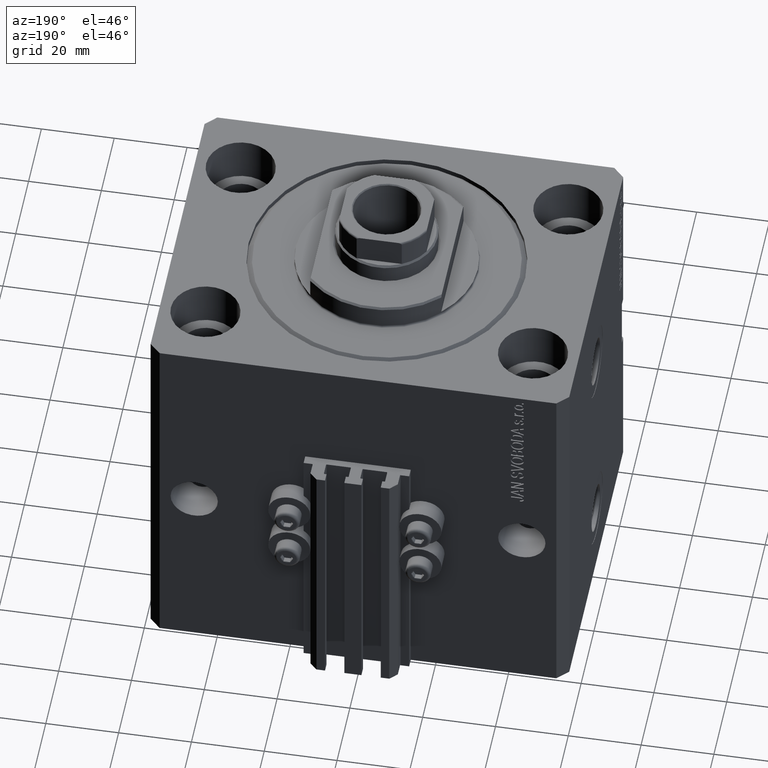
[diagram: clean part render]
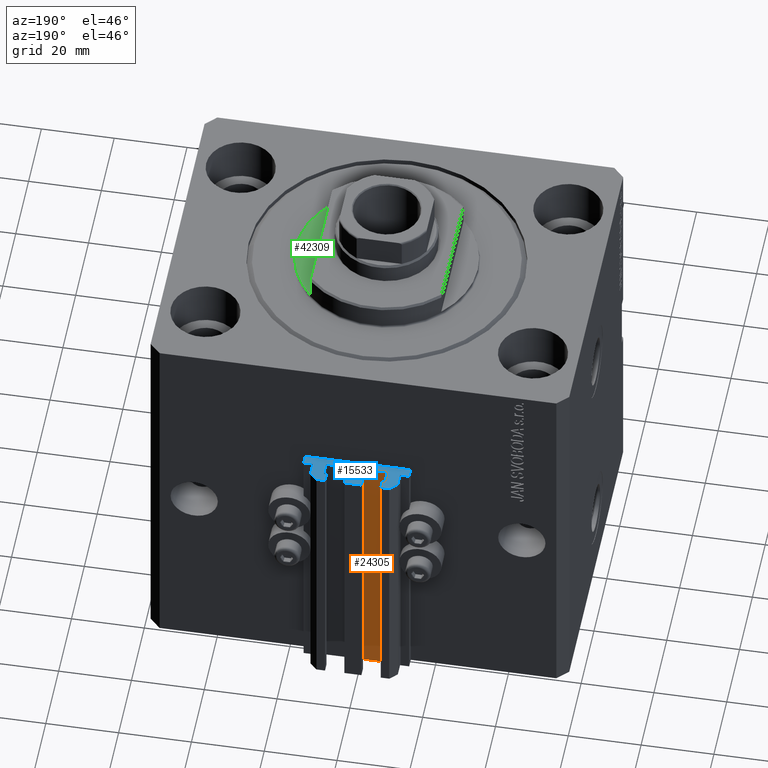
[diagram: same view with three faces highlighted in distinct colors, each labeled with its STEP entity id]
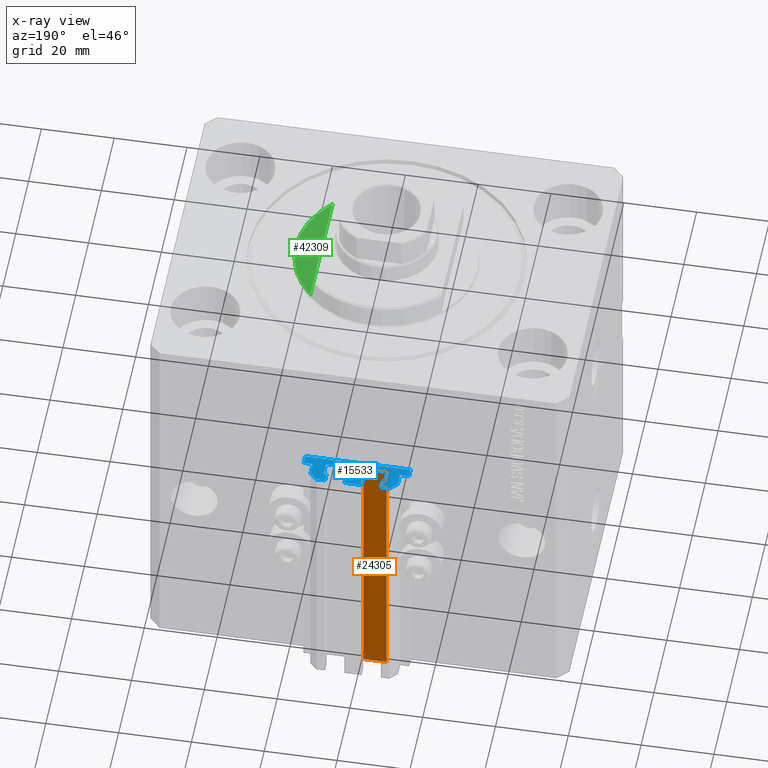
[diagram: x-ray of the same camera — body ghosted, the three highlighted faces saturated]
A machine part, auxiliary view with three faces highlighted in distinct colors.
The next image is the same camera in x-ray (body ghosted, the three faces saturated) — at least one of them is partly hidden behind the body in this view.
Their STEP definitions:

[orange] entity #24305 — the highlighted planar face has unit normal (0, 1, 0).
#1451 = VECTOR ( 'NONE', #16655, 1000.000000000000000 ) ;
#1554 = VERTEX_POINT ( 'NONE', #21747 ) ;
#5683 = EDGE_CURVE ( 'NONE', #40472, #1554, #24205, .T. ) ;
#5694 = LINE ( 'NONE', #35562, #1451 ) ;
#7207 = ORIENTED_EDGE ( 'NONE', *, *, #22869, .T. ) ;
#10495 = EDGE_LOOP ( 'NONE', ( #19639, #10634, #46654, #7207 ) ) ;
#10634 = ORIENTED_EDGE ( 'NONE', *, *, #19656, .F. ) ;
#11797 = VECTOR ( 'NONE', #34671, 1000.000000000000000 ) ;
#13844 = PLANE ( 'NONE',  #38545 ) ;
#16655 = DIRECTION ( 'NONE',  ( -1.000000000000000000, 0.000000000000000000, 0.000000000000000000 ) ) ;
#16698 = CARTESIAN_POINT ( 'NONE',  ( -8.199999999999997513, 46.99999999999999289, -107.0000000000000000 ) ) ;
#16823 = CARTESIAN_POINT ( 'NONE',  ( -1.800000000000000933, 46.99999999999999289, -107.0000000000000000 ) ) ;
#17463 = CARTESIAN_POINT ( 'NONE',  ( -8.199999999999997513, 46.99999999999999289, -33.00000000000000000 ) ) ;
#18956 = CARTESIAN_POINT ( 'NONE',  ( -1.800000000000000933, 46.99999999999999289, -33.00000000000000000 ) ) ;
#19639 = ORIENTED_EDGE ( 'NONE', *, *, #47386, .F. ) ;
#19656 = EDGE_CURVE ( 'NONE', #40472, #49099, #37380, .T. ) ;
#19754 = CARTESIAN_POINT ( 'NONE',  ( -1.800000000000000933, 46.99999999999999289, -107.0000000000000000 ) ) ;
#21747 = CARTESIAN_POINT ( 'NONE',  ( -8.199999999999997513, 46.99999999999999289, -107.0000000000000000 ) ) ;
#22869 = EDGE_CURVE ( 'NONE', #1554, #29014, #23915, .T. ) ;
#23915 = LINE ( 'NONE', #16698, #36089 ) ;
#24205 = LINE ( 'NONE', #19754, #11797 ) ;
#24305 = ADVANCED_FACE ( 'NONE', ( #47153 ), #13844, .T. ) ;
#26995 = CARTESIAN_POINT ( 'NONE',  ( -1.800000000000000933, 46.99999999999999289, -107.0000000000000000 ) ) ;
#28020 = DIRECTION ( 'NONE',  ( 0.000000000000000000, 0.000000000000000000, 1.000000000000000000 ) ) ;
#29014 = VERTEX_POINT ( 'NONE', #17463 ) ;
#32243 = DIRECTION ( 'NONE',  ( 0.000000000000000000, 1.000000000000000000, -0.000000000000000000 ) ) ;
#32785 = VECTOR ( 'NONE', #48811, 1000.000000000000000 ) ;
#33650 = CARTESIAN_POINT ( 'NONE',  ( -1.800000000000000933, 46.99999999999999289, -107.0000000000000000 ) ) ;
#34671 = DIRECTION ( 'NONE',  ( -1.000000000000000000, 0.000000000000000000, 0.000000000000000000 ) ) ;
#35562 = CARTESIAN_POINT ( 'NONE',  ( -1.800000000000000933, 46.99999999999999289, -33.00000000000000000 ) ) ;
#36089 = VECTOR ( 'NONE', #46054, 1000.000000000000000 ) ;
#37380 = LINE ( 'NONE', #33650, #32785 ) ;
#38545 = AXIS2_PLACEMENT_3D ( 'NONE', #16823, #32243, #28020 ) ;
#40472 = VERTEX_POINT ( 'NONE', #26995 ) ;
#46054 = DIRECTION ( 'NONE',  ( 0.000000000000000000, 0.000000000000000000, 1.000000000000000000 ) ) ;
#46654 = ORIENTED_EDGE ( 'NONE', *, *, #5683, .T. ) ;
#47153 = FACE_OUTER_BOUND ( 'NONE', #10495, .T. ) ;
#47386 = EDGE_CURVE ( 'NONE', #49099, #29014, #5694, .T. ) ;
#48811 = DIRECTION ( 'NONE',  ( 0.000000000000000000, 0.000000000000000000, 1.000000000000000000 ) ) ;
#49099 = VERTEX_POINT ( 'NONE', #18956 ) ;

[blue] entity #15533 — the highlighted planar face has unit normal (0, 0, 1).
#77 = CARTESIAN_POINT ( 'NONE',  ( 1.599999999999997868, 47.19999999999998863, -33.00000000000000000 ) ) ;
#355 = DIRECTION ( 'NONE',  ( 1.000000000000000000, 0.000000000000000000, 0.000000000000000000 ) ) ;
#480 = DIRECTION ( 'NONE',  ( 0.000000000000000000, 0.000000000000000000, 1.000000000000000000 ) ) ;
#496 = DIRECTION ( 'NONE',  ( 0.000000000000000000, 0.000000000000000000, 1.000000000000000000 ) ) ;
#684 = LINE ( 'NONE', #4169, #18950 ) ;
#1365 = VERTEX_POINT ( 'NONE', #4185 ) ;
#1404 = VERTEX_POINT ( 'NONE', #18894 ) ;
#1417 = VERTEX_POINT ( 'NONE', #6937 ) ;
#1451 = VECTOR ( 'NONE', #16655, 1000.000000000000000 ) ;
#1474 = CARTESIAN_POINT ( 'NONE',  ( 12.20000000000000107, 47.70000000000000284, -33.00000000000000000 ) ) ;
#1652 = CARTESIAN_POINT ( 'NONE',  ( -12.00000000000000000, 47.69999999999999574, -33.00000000000000000 ) ) ;
#1742 = VERTEX_POINT ( 'NONE', #27689 ) ;
#1806 = ORIENTED_EDGE ( 'NONE', *, *, #41584, .T. ) ;
#1895 = VERTEX_POINT ( 'NONE', #19687 ) ;
#2104 = EDGE_CURVE ( 'NONE', #17971, #46239, #38821, .T. ) ;
#2197 = CARTESIAN_POINT ( 'NONE',  ( -14.50000000000000000, 45.00000000000000000, -33.00000000000000000 ) ) ;
#2419 = CARTESIAN_POINT ( 'NONE',  ( -14.50000000000000000, 45.00000000000000000, -33.00000000000000000 ) ) ;
#2580 = CARTESIAN_POINT ( 'NONE',  ( -8.399999999999996803, 47.19999999999998863, -33.00000000000000000 ) ) ;
#2883 = DIRECTION ( 'NONE',  ( -1.084202172485506406E-15, 1.000000000000000000, 0.000000000000000000 ) ) ;
#3604 = ORIENTED_EDGE ( 'NONE', *, *, #34589, .T. ) ;
#3889 = EDGE_CURVE ( 'NONE', #18340, #24215, #18261, .T. ) ;
#3949 = DIRECTION ( 'NONE',  ( 1.000000000000000000, 0.000000000000000000, 0.000000000000000000 ) ) ;
#4169 = CARTESIAN_POINT ( 'NONE',  ( 1.800000000000000933, 50.60000000000000853, -33.00000000000000000 ) ) ;
#4185 = CARTESIAN_POINT ( 'NONE',  ( -14.50000000000000000, 47.49999999999998579, -33.00000000000000000 ) ) ;
#4259 = CARTESIAN_POINT ( 'NONE',  ( -7.650000000000002132, 52.99999999999999289, -33.00000000000000000 ) ) ;
#4461 = CARTESIAN_POINT ( 'NONE',  ( -10.00000000000000000, 52.99999999999999289, -33.00000000000000000 ) ) ;
#4479 = AXIS2_PLACEMENT_3D ( 'NONE', #16446, #43044, #10377 ) ;
#4816 = DIRECTION ( 'NONE',  ( -1.000000000000000000, 0.000000000000000000, 0.000000000000000000 ) ) ;
#4906 = DIRECTION ( 'NONE',  ( 0.000000000000000000, 1.000000000000000000, 0.000000000000000000 ) ) ;
#5077 = VECTOR ( 'NONE', #24669, 1000.000000000000000 ) ;
#5522 = LINE ( 'NONE', #20708, #13731 ) ;
#5568 = DIRECTION ( 'NONE',  ( 0.000000000000000000, 0.000000000000000000, 1.000000000000000000 ) ) ;
#5694 = LINE ( 'NONE', #35562, #1451 ) ;
#6069 = VECTOR ( 'NONE', #31737, 1000.000000000000000 ) ;
#6131 = LINE ( 'NONE', #6373, #30522 ) ;
#6373 = CARTESIAN_POINT ( 'NONE',  ( -10.00000000000000000, 52.99999999999999289, -33.00000000000000000 ) ) ;
#6467 = CARTESIAN_POINT ( 'NONE',  ( -2.350000000000003642, 53.00000000000000000, -33.00000000000000000 ) ) ;
#6593 = CARTESIAN_POINT ( 'NONE',  ( 14.49999999999999645, 45.00000000000000000, -33.00000000000000000 ) ) ;
#6700 = DIRECTION ( 'NONE',  ( 0.000000000000000000, 0.000000000000000000, 1.000000000000000000 ) ) ;
#6848 = CIRCLE ( 'NONE', #4479, 0.2000000000000074496 ) ;
#6937 = CARTESIAN_POINT ( 'NONE',  ( 8.400000000000003908, 50.39999999999999858, -33.00000000000000000 ) ) ;
#6961 = VERTEX_POINT ( 'NONE', #77 ) ;
#7083 = ORIENTED_EDGE ( 'NONE', *, *, #44005, .F. ) ;
#7204 = EDGE_CURVE ( 'NONE', #1404, #33998, #28656, .T. ) ;
#7415 = CIRCLE ( 'NONE', #20140, 0.2000000000000033418 ) ;
#7709 = DIRECTION ( 'NONE',  ( 1.000000000000000000, 0.000000000000000000, 0.000000000000000000 ) ) ;
#7712 = CIRCLE ( 'NONE', #36283, 0.1999999999999953204 ) ;
#7759 = ORIENTED_EDGE ( 'NONE', *, *, #30291, .F. ) ;
#7789 = CARTESIAN_POINT ( 'NONE',  ( -12.00000000000000000, 50.99999999999999289, -33.00000000000000000 ) ) ;
#7997 = EDGE_CURVE ( 'NONE', #14544, #38763, #48848, .T. ) ;
#8052 = ORIENTED_EDGE ( 'NONE', *, *, #44872, .F. ) ;
#8053 = ORIENTED_EDGE ( 'NONE', *, *, #39992, .T. ) ;
#8189 = VERTEX_POINT ( 'NONE', #4259 ) ;
#8281 = EDGE_CURVE ( 'NONE', #1417, #24387, #38825, .T. ) ;
#8482 = DIRECTION ( 'NONE',  ( -5.256737805990328981E-16, 1.000000000000000000, 0.000000000000000000 ) ) ;
#8486 = DIRECTION ( 'NONE',  ( -5.421010862427508365E-16, -1.000000000000000000, 0.000000000000000000 ) ) ;
#8774 = EDGE_CURVE ( 'NONE', #18340, #24387, #33361, .T. ) ;
#8804 = ORIENTED_EDGE ( 'NONE', *, *, #2104, .T. ) ;
#8846 = CARTESIAN_POINT ( 'NONE',  ( -7.650000000000002132, 50.59999999999999432, -33.00000000000000000 ) ) ;
#8962 = CARTESIAN_POINT ( 'NONE',  ( -1.800000000000000933, 47.19999999999998863, -33.00000000000000000 ) ) ;
#9094 = VECTOR ( 'NONE', #33031, 1000.000000000000000 ) ;
#9533 = ORIENTED_EDGE ( 'NONE', *, *, #10394, .T. ) ;
#9968 = CIRCLE ( 'NONE', #32986, 0.2000000000000033418 ) ;
#10084 = CARTESIAN_POINT ( 'NONE',  ( -12.20000000000000107, 47.49999999999998579, -33.00000000000000000 ) ) ;
#10152 = LINE ( 'NONE', #32059, #10353 ) ;
#10353 = VECTOR ( 'NONE', #13165, 1000.000000000000000 ) ;
#10377 = DIRECTION ( 'NONE',  ( 1.000000000000000000, 0.000000000000000000, 0.000000000000000000 ) ) ;
#10394 = EDGE_CURVE ( 'NONE', #41824, #19614, #10152, .T. ) ;
#10399 = CARTESIAN_POINT ( 'NONE',  ( -2.350000000000003197, 50.60000000000000142, -33.00000000000000000 ) ) ;
#10496 = EDGE_CURVE ( 'NONE', #37877, #18242, #14386, .T. ) ;
#10777 = DIRECTION ( 'NONE',  ( 1.000000000000000000, 0.000000000000000000, 0.000000000000000000 ) ) ;
#10921 = DIRECTION ( 'NONE',  ( 0.000000000000000000, 0.000000000000000000, 1.000000000000000000 ) ) ;
#11025 = CARTESIAN_POINT ( 'NONE',  ( 1.800000000000000933, 47.19999999999998863, -33.00000000000000000 ) ) ;
#11230 = DIRECTION ( 'NONE',  ( 0.000000000000000000, -1.000000000000000000, 0.000000000000000000 ) ) ;
#11233 = DIRECTION ( 'NONE',  ( 1.000000000000000000, 0.000000000000000000, 0.000000000000000000 ) ) ;
#11316 = CARTESIAN_POINT ( 'NONE',  ( -12.20000000000000107, 47.69999999999999574, -33.00000000000000000 ) ) ;
#11539 = CARTESIAN_POINT ( 'NONE',  ( 7.649999999999998579, 50.60000000000000853, -33.00000000000000000 ) ) ;
#11752 = DIRECTION ( 'NONE',  ( 1.000000000000000000, 0.000000000000000000, 0.000000000000000000 ) ) ;
#12217 = CARTESIAN_POINT ( 'NONE',  ( 12.00000000000000178, 47.70000000000000284, -33.00000000000000000 ) ) ;
#12233 = VERTEX_POINT ( 'NONE', #2419 ) ;
#12396 = VERTEX_POINT ( 'NONE', #15346 ) ;
#12736 = EDGE_CURVE ( 'NONE', #1417, #30865, #41429, .T. ) ;
#13165 = DIRECTION ( 'NONE',  ( -6.776263578034385456E-17, -1.000000000000000000, 0.000000000000000000 ) ) ;
#13422 = VECTOR ( 'NONE', #11230, 1000.000000000000000 ) ;
#13424 = CARTESIAN_POINT ( 'NONE',  ( -1.599999999999997868, 50.39999999999999858, -33.00000000000000000 ) ) ;
#13481 = LINE ( 'NONE', #43799, #15526 ) ;
#13731 = VECTOR ( 'NONE', #20467, 1000.000000000000000 ) ;
#13752 = ORIENTED_EDGE ( 'NONE', *, *, #48286, .T. ) ;
#14170 = VECTOR ( 'NONE', #4906, 1000.000000000000000 ) ;
#14386 = LINE ( 'NONE', #10399, #31002 ) ;
#14544 = VERTEX_POINT ( 'NONE', #17683 ) ;
#14762 = VECTOR ( 'NONE', #11233, 1000.000000000000000 ) ;
#14791 = ORIENTED_EDGE ( 'NONE', *, *, #27034, .T. ) ;
#14809 = ORIENTED_EDGE ( 'NONE', *, *, #8774, .F. ) ;
#15346 = CARTESIAN_POINT ( 'NONE',  ( 1.600000000000000533, 50.39999999999999858, -33.00000000000000000 ) ) ;
#15462 = ORIENTED_EDGE ( 'NONE', *, *, #28880, .T. ) ;
#15487 = VECTOR ( 'NONE', #40795, 1000.000000000000000 ) ;
#15526 = VECTOR ( 'NONE', #20221, 1000.000000000000000 ) ;
#15533 = ADVANCED_FACE ( 'NONE', ( #15921 ), #35319, .T. ) ;
#15539 = ORIENTED_EDGE ( 'NONE', *, *, #10496, .T. ) ;
#15646 = CARTESIAN_POINT ( 'NONE',  ( 12.00000000000000000, 51.00000000000000711, -33.00000000000000000 ) ) ;
#15659 = VECTOR ( 'NONE', #33360, 1000.000000000000000 ) ;
#15763 = CARTESIAN_POINT ( 'NONE',  ( 2.349999999999999645, 50.60000000000000142, -33.00000000000000000 ) ) ;
#15818 = ORIENTED_EDGE ( 'NONE', *, *, #7204, .T. ) ;
#15921 = FACE_OUTER_BOUND ( 'NONE', #36923, .T. ) ;
#15951 = VERTEX_POINT ( 'NONE', #1652 ) ;
#16446 = CARTESIAN_POINT ( 'NONE',  ( -8.199999999999997513, 50.39999999999998437, -33.00000000000000000 ) ) ;
#16548 = EDGE_CURVE ( 'NONE', #47873, #15951, #5522, .T. ) ;
#16655 = DIRECTION ( 'NONE',  ( -1.000000000000000000, 0.000000000000000000, 0.000000000000000000 ) ) ;
#16994 = LINE ( 'NONE', #40345, #30670 ) ;
#16996 = EDGE_CURVE ( 'NONE', #38992, #29014, #29558, .T. ) ;
#17000 = ORIENTED_EDGE ( 'NONE', *, *, #47386, .T. ) ;
#17052 = ORIENTED_EDGE ( 'NONE', *, *, #7997, .T. ) ;
#17131 = CARTESIAN_POINT ( 'NONE',  ( 14.49999999999999645, 45.00000000000000000, -33.00000000000000000 ) ) ;
#17463 = CARTESIAN_POINT ( 'NONE',  ( -8.199999999999997513, 46.99999999999999289, -33.00000000000000000 ) ) ;
#17682 = LINE ( 'NONE', #6467, #15487 ) ;
#17683 = CARTESIAN_POINT ( 'NONE',  ( 2.349999999999999645, 50.60000000000000142, -33.00000000000000000 ) ) ;
#17971 = VERTEX_POINT ( 'NONE', #30334 ) ;
#18036 = CARTESIAN_POINT ( 'NONE',  ( 8.200000000000001066, 50.60000000000000853, -33.00000000000000000 ) ) ;
#18242 = VERTEX_POINT ( 'NONE', #26557 ) ;
#18261 = LINE ( 'NONE', #45345, #45198 ) ;
#18340 = VERTEX_POINT ( 'NONE', #26795 ) ;
#18475 = DIRECTION ( 'NONE',  ( 1.000000000000000000, 0.000000000000000000, 0.000000000000000000 ) ) ;
#18711 = CARTESIAN_POINT ( 'NONE',  ( 7.649999999999998579, 53.00000000000000711, -33.00000000000000000 ) ) ;
#18894 = CARTESIAN_POINT ( 'NONE',  ( 7.649999999999998579, 53.00000000000000711, -33.00000000000000000 ) ) ;
#18896 = CARTESIAN_POINT ( 'NONE',  ( 12.20000000000000107, 47.70000000000000284, -33.00000000000000000 ) ) ;
#18950 = VECTOR ( 'NONE', #19856, 1000.000000000000000 ) ;
#18956 = CARTESIAN_POINT ( 'NONE',  ( -1.800000000000000933, 46.99999999999999289, -33.00000000000000000 ) ) ;
#19614 = VERTEX_POINT ( 'NONE', #28450 ) ;
#19687 = CARTESIAN_POINT ( 'NONE',  ( 1.800000000000000933, 50.60000000000000853, -33.00000000000000000 ) ) ;
#19724 = VECTOR ( 'NONE', #38134, 1000.000000000000000 ) ;
#19726 = VECTOR ( 'NONE', #2883, 1000.000000000000000 ) ;
#19856 = DIRECTION ( 'NONE',  ( 1.000000000000000000, -1.261617073437681085E-14, 0.000000000000000000 ) ) ;
#20007 = CARTESIAN_POINT ( 'NONE',  ( 14.49999999999999645, 47.50000000000001421, -33.00000000000000000 ) ) ;
#20140 = AXIS2_PLACEMENT_3D ( 'NONE', #28953, #5568, #35914 ) ;
#20221 = DIRECTION ( 'NONE',  ( 0.000000000000000000, -1.000000000000000000, 0.000000000000000000 ) ) ;
#20467 = DIRECTION ( 'NONE',  ( 0.000000000000000000, -1.000000000000000000, 0.000000000000000000 ) ) ;
#20507 = CARTESIAN_POINT ( 'NONE',  ( 9.999999999999998224, 53.00000000000000711, -33.00000000000000000 ) ) ;
#20708 = CARTESIAN_POINT ( 'NONE',  ( -12.00000000000000000, 50.99999999999999289, -33.00000000000000000 ) ) ;
#20921 = EDGE_CURVE ( 'NONE', #1895, #12396, #7415, .T. ) ;
#21229 = ORIENTED_EDGE ( 'NONE', *, *, #43189, .T. ) ;
#21320 = CARTESIAN_POINT ( 'NONE',  ( -8.399999999999996803, 47.19999999999998863, -33.00000000000000000 ) ) ;
#21628 = DIRECTION ( 'NONE',  ( 1.000000000000000000, 0.000000000000000000, 0.000000000000000000 ) ) ;
#23152 = LINE ( 'NONE', #33611, #15659 ) ;
#23222 = DIRECTION ( 'NONE',  ( 0.000000000000000000, 1.000000000000000000, 0.000000000000000000 ) ) ;
#23551 = VECTOR ( 'NONE', #46407, 1000.000000000000000 ) ;
#24215 = VERTEX_POINT ( 'NONE', #44711 ) ;
#24387 = VERTEX_POINT ( 'NONE', #47400 ) ;
#24492 = CARTESIAN_POINT ( 'NONE',  ( -8.199999999999997513, 47.19999999999998863, -33.00000000000000000 ) ) ;
#24663 = ORIENTED_EDGE ( 'NONE', *, *, #12736, .F. ) ;
#24669 = DIRECTION ( 'NONE',  ( 0.000000000000000000, 1.000000000000000000, 0.000000000000000000 ) ) ;
#25077 = LINE ( 'NONE', #17131, #47073 ) ;
#25194 = ORIENTED_EDGE ( 'NONE', *, *, #8281, .T. ) ;
#25456 = DIRECTION ( 'NONE',  ( -1.000000000000000000, 0.000000000000000000, 0.000000000000000000 ) ) ;
#25721 = VERTEX_POINT ( 'NONE', #38884 ) ;
#25947 = EDGE_CURVE ( 'NONE', #1742, #38763, #29892, .T. ) ;
#26032 = VERTEX_POINT ( 'NONE', #39246 ) ;
#26517 = ORIENTED_EDGE ( 'NONE', *, *, #44206, .T. ) ;
#26557 = CARTESIAN_POINT ( 'NONE',  ( -1.800000000000000933, 50.60000000000000853, -33.00000000000000000 ) ) ;
#26616 = VERTEX_POINT ( 'NONE', #32948 ) ;
#26795 = CARTESIAN_POINT ( 'NONE',  ( 8.199999999999999289, 46.99999999999998579, -33.00000000000000000 ) ) ;
#27034 = EDGE_CURVE ( 'NONE', #32753, #1365, #16994, .T. ) ;
#27440 = LINE ( 'NONE', #11539, #19724 ) ;
#27474 = EDGE_CURVE ( 'NONE', #46239, #39564, #34561, .T. ) ;
#27689 = CARTESIAN_POINT ( 'NONE',  ( -2.350000000000003642, 53.00000000000000000, -33.00000000000000000 ) ) ;
#28450 = CARTESIAN_POINT ( 'NONE',  ( -1.600000000000000755, 47.19999999999998863, -33.00000000000000000 ) ) ;
#28492 = VERTEX_POINT ( 'NONE', #4461 ) ;
#28656 = LINE ( 'NONE', #18711, #13422 ) ;
#28808 = VECTOR ( 'NONE', #4816, 1000.000000000000000 ) ;
#28880 = EDGE_CURVE ( 'NONE', #33998, #30865, #27440, .T. ) ;
#28953 = CARTESIAN_POINT ( 'NONE',  ( 1.800000000000000933, 50.39999999999999858, -33.00000000000000000 ) ) ;
#29014 = VERTEX_POINT ( 'NONE', #17463 ) ;
#29028 = LINE ( 'NONE', #21320, #19726 ) ;
#29141 = CARTESIAN_POINT ( 'NONE',  ( -7.650000000000002132, 50.59999999999999432, -33.00000000000000000 ) ) ;
#29352 = VECTOR ( 'NONE', #8486, 1000.000000000000000 ) ;
#29558 = CIRCLE ( 'NONE', #45544, 0.1999999999999987899 ) ;
#29650 = ORIENTED_EDGE ( 'NONE', *, *, #32426, .F. ) ;
#29892 = LINE ( 'NONE', #40579, #14762 ) ;
#29957 = ORIENTED_EDGE ( 'NONE', *, *, #25947, .F. ) ;
#30291 = EDGE_CURVE ( 'NONE', #49099, #19614, #48605, .T. ) ;
#30334 = CARTESIAN_POINT ( 'NONE',  ( 12.00000000000000533, 47.70000000000000284, -33.00000000000000000 ) ) ;
#30522 = VECTOR ( 'NONE', #44179, 999.9999999999998863 ) ;
#30670 = VECTOR ( 'NONE', #32891, 1000.000000000000000 ) ;
#30828 = DIRECTION ( 'NONE',  ( -0.7071067811865474617, 0.7071067811865474617, 0.000000000000000000 ) ) ;
#30865 = VERTEX_POINT ( 'NONE', #18036 ) ;
#30903 = CARTESIAN_POINT ( 'NONE',  ( -1.800000000000000933, 50.39999999999999858, -33.00000000000000000 ) ) ;
#31002 = VECTOR ( 'NONE', #33285, 1000.000000000000000 ) ;
#31212 = EDGE_CURVE ( 'NONE', #41019, #26616, #42623, .T. ) ;
#31471 = ORIENTED_EDGE ( 'NONE', *, *, #40692, .F. ) ;
#31737 = DIRECTION ( 'NONE',  ( -1.000000000000000000, 0.000000000000000000, 0.000000000000000000 ) ) ;
#31808 = EDGE_CURVE ( 'NONE', #42075, #41019, #25077, .T. ) ;
#32012 = LINE ( 'NONE', #47168, #14170 ) ;
#32059 = CARTESIAN_POINT ( 'NONE',  ( -1.600000000000000533, 50.39999999999999858, -33.00000000000000000 ) ) ;
#32133 = LINE ( 'NONE', #29141, #5077 ) ;
#32363 = ORIENTED_EDGE ( 'NONE', *, *, #44389, .F. ) ;
#32426 = EDGE_CURVE ( 'NONE', #41824, #18242, #42328, .T. ) ;
#32753 = VERTEX_POINT ( 'NONE', #10084 ) ;
#32891 = DIRECTION ( 'NONE',  ( -1.000000000000000000, 0.000000000000000000, 0.000000000000000000 ) ) ;
#32948 = CARTESIAN_POINT ( 'NONE',  ( 12.20000000000000107, 47.50000000000001421, -33.00000000000000000 ) ) ;
#32986 = AXIS2_PLACEMENT_3D ( 'NONE', #11025, #48818, #10777 ) ;
#33031 = DIRECTION ( 'NONE',  ( 1.000000000000000000, 0.000000000000000000, 0.000000000000000000 ) ) ;
#33096 = ORIENTED_EDGE ( 'NONE', *, *, #31212, .T. ) ;
#33137 = DIRECTION ( 'NONE',  ( 0.000000000000000000, 0.000000000000000000, 1.000000000000000000 ) ) ;
#33285 = DIRECTION ( 'NONE',  ( 1.000000000000000000, 1.261617073437673039E-14, 0.000000000000000000 ) ) ;
#33360 = DIRECTION ( 'NONE',  ( 1.000000000000000000, -1.261617073437685503E-14, 0.000000000000000000 ) ) ;
#33361 = CIRCLE ( 'NONE', #41287, 0.2000000000000022593 ) ;
#33611 = CARTESIAN_POINT ( 'NONE',  ( -8.199999999999999289, 50.60000000000000142, -33.00000000000000000 ) ) ;
#33998 = VERTEX_POINT ( 'NONE', #46554 ) ;
#34561 = LINE ( 'NONE', #15646, #38653 ) ;
#34589 = EDGE_CURVE ( 'NONE', #28492, #47873, #6131, .T. ) ;
#34830 = DIRECTION ( 'NONE',  ( 1.000000000000000000, 0.000000000000000000, -0.000000000000000000 ) ) ;
#35202 = AXIS2_PLACEMENT_3D ( 'NONE', #30903, #46298, #11752 ) ;
#35319 = PLANE ( 'NONE',  #45473 ) ;
#35562 = CARTESIAN_POINT ( 'NONE',  ( -1.800000000000000933, 46.99999999999999289, -33.00000000000000000 ) ) ;
#35601 = ORIENTED_EDGE ( 'NONE', *, *, #39447, .T. ) ;
#35656 = VECTOR ( 'NONE', #8482, 1000.000000000000000 ) ;
#35914 = DIRECTION ( 'NONE',  ( 1.000000000000000000, 0.000000000000000000, 0.000000000000000000 ) ) ;
#36283 = AXIS2_PLACEMENT_3D ( 'NONE', #18896, #10921, #3949 ) ;
#36671 = VERTEX_POINT ( 'NONE', #8846 ) ;
#36923 = EDGE_LOOP ( 'NONE', ( #1806, #35601, #38465, #33096, #8052, #8804, #41362, #26517, #15818, #15462, #24663, #25194, #14809, #46580, #31471, #13752, #46307, #37168, #17052, #29957, #8053, #15539, #29650, #9533, #7759, #17000, #40627, #37466, #7083, #40561, #45629, #21229, #3604, #45065, #32363, #14791 ) ) ;
#37072 = CARTESIAN_POINT ( 'NONE',  ( 12.00000000000000000, 51.00000000000000711, -33.00000000000000000 ) ) ;
#37168 = ORIENTED_EDGE ( 'NONE', *, *, #47549, .T. ) ;
#37466 = ORIENTED_EDGE ( 'NONE', *, *, #48423, .T. ) ;
#37877 = VERTEX_POINT ( 'NONE', #44658 ) ;
#38134 = DIRECTION ( 'NONE',  ( 1.000000000000000000, 0.000000000000000000, 0.000000000000000000 ) ) ;
#38387 = EDGE_CURVE ( 'NONE', #36671, #8189, #32133, .T. ) ;
#38465 = ORIENTED_EDGE ( 'NONE', *, *, #31808, .T. ) ;
#38473 = LINE ( 'NONE', #39197, #6069 ) ;
#38653 = VECTOR ( 'NONE', #30828, 1000.000000000000114 ) ;
#38707 = CARTESIAN_POINT ( 'NONE',  ( -7.650000000000002132, 52.99999999999999289, -33.00000000000000000 ) ) ;
#38763 = VERTEX_POINT ( 'NONE', #41004 ) ;
#38821 = LINE ( 'NONE', #12217, #35656 ) ;
#38825 = LINE ( 'NONE', #42303, #29352 ) ;
#38884 = CARTESIAN_POINT ( 'NONE',  ( -8.400000000000000355, 50.39999999999998437, -33.00000000000000000 ) ) ;
#38992 = VERTEX_POINT ( 'NONE', #2580 ) ;
#39197 = CARTESIAN_POINT ( 'NONE',  ( 9.999999999999998224, 53.00000000000000711, -33.00000000000000000 ) ) ;
#39246 = CARTESIAN_POINT ( 'NONE',  ( -8.199999999999999289, 50.59999999999999432, -33.00000000000000000 ) ) ;
#39447 = EDGE_CURVE ( 'NONE', #12233, #42075, #47454, .T. ) ;
#39564 = VERTEX_POINT ( 'NONE', #20507 ) ;
#39992 = EDGE_CURVE ( 'NONE', #1742, #37877, #17682, .T. ) ;
#40345 = CARTESIAN_POINT ( 'NONE',  ( -12.20000000000000107, 47.49999999999998579, -33.00000000000000000 ) ) ;
#40561 = ORIENTED_EDGE ( 'NONE', *, *, #49177, .T. ) ;
#40579 = CARTESIAN_POINT ( 'NONE',  ( -2.350000000000003642, 53.00000000000000000, -33.00000000000000000 ) ) ;
#40627 = ORIENTED_EDGE ( 'NONE', *, *, #16996, .F. ) ;
#40692 = EDGE_CURVE ( 'NONE', #6961, #24215, #9968, .T. ) ;
#40795 = DIRECTION ( 'NONE',  ( 1.807003620809174632E-16, -1.000000000000000000, 0.000000000000000000 ) ) ;
#41004 = CARTESIAN_POINT ( 'NONE',  ( 2.349999999999999645, 53.00000000000000000, -33.00000000000000000 ) ) ;
#41019 = VERTEX_POINT ( 'NONE', #44287 ) ;
#41038 = AXIS2_PLACEMENT_3D ( 'NONE', #11316, #48606, #355 ) ;
#41287 = AXIS2_PLACEMENT_3D ( 'NONE', #45757, #480, #7709 ) ;
#41362 = ORIENTED_EDGE ( 'NONE', *, *, #27474, .T. ) ;
#41429 = CIRCLE ( 'NONE', #46210, 0.2000000000000040079 ) ;
#41584 = EDGE_CURVE ( 'NONE', #1365, #12233, #13481, .T. ) ;
#41824 = VERTEX_POINT ( 'NONE', #13424 ) ;
#41863 = CIRCLE ( 'NONE', #41038, 0.2000000000000040079 ) ;
#42070 = VECTOR ( 'NONE', #23222, 1000.000000000000000 ) ;
#42075 = VERTEX_POINT ( 'NONE', #6593 ) ;
#42292 = AXIS2_PLACEMENT_3D ( 'NONE', #8962, #6700, #21628 ) ;
#42303 = CARTESIAN_POINT ( 'NONE',  ( 8.400000000000000355, 50.39999999999999858, -33.00000000000000000 ) ) ;
#42328 = CIRCLE ( 'NONE', #35202, 0.2000000000000031197 ) ;
#42435 = LINE ( 'NONE', #38707, #23551 ) ;
#42623 = LINE ( 'NONE', #20007, #28808 ) ;
#43044 = DIRECTION ( 'NONE',  ( 0.000000000000000000, 0.000000000000000000, 1.000000000000000000 ) ) ;
#43189 = EDGE_CURVE ( 'NONE', #8189, #28492, #42435, .T. ) ;
#43392 = DIRECTION ( 'NONE',  ( 1.000000000000000000, 0.000000000000000000, 0.000000000000000000 ) ) ;
#43634 = DIRECTION ( 'NONE',  ( 0.000000000000000000, 0.000000000000000000, 1.000000000000000000 ) ) ;
#43799 = CARTESIAN_POINT ( 'NONE',  ( -14.50000000000000000, 47.49999999999998579, -33.00000000000000000 ) ) ;
#44005 = EDGE_CURVE ( 'NONE', #26032, #25721, #6848, .T. ) ;
#44179 = DIRECTION ( 'NONE',  ( -0.7071067811865472397, -0.7071067811865479058, 0.000000000000000000 ) ) ;
#44206 = EDGE_CURVE ( 'NONE', #39564, #1404, #38473, .T. ) ;
#44287 = CARTESIAN_POINT ( 'NONE',  ( 14.49999999999999645, 47.50000000000001421, -33.00000000000000000 ) ) ;
#44389 = EDGE_CURVE ( 'NONE', #32753, #15951, #41863, .T. ) ;
#44658 = CARTESIAN_POINT ( 'NONE',  ( -2.350000000000003197, 50.60000000000000142, -33.00000000000000000 ) ) ;
#44711 = CARTESIAN_POINT ( 'NONE',  ( 1.800000000000000933, 46.99999999999998579, -33.00000000000000000 ) ) ;
#44818 = CARTESIAN_POINT ( 'NONE',  ( 8.200000000000001066, 50.39999999999999858, -33.00000000000000000 ) ) ;
#44872 = EDGE_CURVE ( 'NONE', #17971, #26616, #7712, .T. ) ;
#45065 = ORIENTED_EDGE ( 'NONE', *, *, #16548, .T. ) ;
#45198 = VECTOR ( 'NONE', #25456, 1000.000000000000000 ) ;
#45345 = CARTESIAN_POINT ( 'NONE',  ( 8.199999999999999289, 46.99999999999998579, -33.00000000000000000 ) ) ;
#45473 = AXIS2_PLACEMENT_3D ( 'NONE', #1474, #496, #34830 ) ;
#45544 = AXIS2_PLACEMENT_3D ( 'NONE', #24492, #43634, #43392 ) ;
#45629 = ORIENTED_EDGE ( 'NONE', *, *, #38387, .T. ) ;
#45757 = CARTESIAN_POINT ( 'NONE',  ( 8.199999999999999289, 47.19999999999998863, -33.00000000000000000 ) ) ;
#46210 = AXIS2_PLACEMENT_3D ( 'NONE', #44818, #33137, #18475 ) ;
#46239 = VERTEX_POINT ( 'NONE', #37072 ) ;
#46298 = DIRECTION ( 'NONE',  ( 0.000000000000000000, 0.000000000000000000, 1.000000000000000000 ) ) ;
#46307 = ORIENTED_EDGE ( 'NONE', *, *, #20921, .F. ) ;
#46407 = DIRECTION ( 'NONE',  ( -1.000000000000000000, 0.000000000000000000, 0.000000000000000000 ) ) ;
#46554 = CARTESIAN_POINT ( 'NONE',  ( 7.649999999999998579, 50.60000000000000853, -33.00000000000000000 ) ) ;
#46580 = ORIENTED_EDGE ( 'NONE', *, *, #3889, .T. ) ;
#47073 = VECTOR ( 'NONE', #47446, 1000.000000000000000 ) ;
#47168 = CARTESIAN_POINT ( 'NONE',  ( 1.600000000000000533, 47.19999999999998863, -33.00000000000000000 ) ) ;
#47386 = EDGE_CURVE ( 'NONE', #49099, #29014, #5694, .T. ) ;
#47400 = CARTESIAN_POINT ( 'NONE',  ( 8.400000000000000355, 47.19999999999998863, -33.00000000000000000 ) ) ;
#47446 = DIRECTION ( 'NONE',  ( 0.000000000000000000, 1.000000000000000000, 0.000000000000000000 ) ) ;
#47454 = LINE ( 'NONE', #2197, #9094 ) ;
#47549 = EDGE_CURVE ( 'NONE', #1895, #14544, #684, .T. ) ;
#47873 = VERTEX_POINT ( 'NONE', #7789 ) ;
#48286 = EDGE_CURVE ( 'NONE', #6961, #12396, #32012, .T. ) ;
#48423 = EDGE_CURVE ( 'NONE', #38992, #25721, #29028, .T. ) ;
#48605 = CIRCLE ( 'NONE', #42292, 0.1999999999999994282 ) ;
#48606 = DIRECTION ( 'NONE',  ( 0.000000000000000000, 0.000000000000000000, 1.000000000000000000 ) ) ;
#48818 = DIRECTION ( 'NONE',  ( 0.000000000000000000, 0.000000000000000000, 1.000000000000000000 ) ) ;
#48848 = LINE ( 'NONE', #15763, #42070 ) ;
#49099 = VERTEX_POINT ( 'NONE', #18956 ) ;
#49177 = EDGE_CURVE ( 'NONE', #26032, #36671, #23152, .T. ) ;

[green] entity #42309 — the highlighted planar face has unit normal (0, 0, 1).
#1505 = EDGE_LOOP ( 'NONE', ( #40959, #49166, #14506 ) ) ;
#2647 = FACE_OUTER_BOUND ( 'NONE', #1505, .T. ) ;
#3417 = CIRCLE ( 'NONE', #6599, 25.00000000000000000 ) ;
#3900 = VERTEX_POINT ( 'NONE', #37640 ) ;
#6383 = PLANE ( 'NONE',  #15560 ) ;
#6599 = AXIS2_PLACEMENT_3D ( 'NONE', #8836, #30994, #27747 ) ;
#8659 = LINE ( 'NONE', #34785, #44158 ) ;
#8836 = CARTESIAN_POINT ( 'NONE',  ( 0.000000000000000000, 0.000000000000000000, -1.000000000000000000 ) ) ;
#10361 = DIRECTION ( 'NONE',  ( 0.000000000000000000, 0.000000000000000000, -1.000000000000000000 ) ) ;
#14506 = ORIENTED_EDGE ( 'NONE', *, *, #42206, .T. ) ;
#15560 = AXIS2_PLACEMENT_3D ( 'NONE', #17352, #10361, #47174 ) ;
#17352 = CARTESIAN_POINT ( 'NONE',  ( 0.000000000000000000, 0.000000000000000000, -1.000000000000000000 ) ) ;
#18420 = DIRECTION ( 'NONE',  ( -1.000000000000000000, 0.000000000000000000, 0.000000000000000000 ) ) ;
#19146 = EDGE_CURVE ( 'NONE', #32157, #3900, #28031, .T. ) ;
#27747 = DIRECTION ( 'NONE',  ( -1.000000000000000000, 0.000000000000000000, 0.000000000000000000 ) ) ;
#28031 = CIRCLE ( 'NONE', #29633, 25.00000000000000000 ) ;
#28284 = VERTEX_POINT ( 'NONE', #37551 ) ;
#29633 = AXIS2_PLACEMENT_3D ( 'NONE', #33330, #48000, #18420 ) ;
#30472 = CARTESIAN_POINT ( 'NONE',  ( -18.00000000000000000, -17.34935157289747920, -1.000000000000000000 ) ) ;
#30994 = DIRECTION ( 'NONE',  ( 0.000000000000000000, 0.000000000000000000, -1.000000000000000000 ) ) ;
#32157 = VERTEX_POINT ( 'NONE', #30472 ) ;
#33330 = CARTESIAN_POINT ( 'NONE',  ( 0.000000000000000000, 0.000000000000000000, -1.000000000000000000 ) ) ;
#34785 = CARTESIAN_POINT ( 'NONE',  ( -18.00000000000000000, -41.24318125460256113, -1.000000000000000000 ) ) ;
#35811 = EDGE_CURVE ( 'NONE', #3900, #28284, #3417, .T. ) ;
#37551 = CARTESIAN_POINT ( 'NONE',  ( -18.00000000000000000, 17.34935157289747920, -1.000000000000000000 ) ) ;
#37640 = CARTESIAN_POINT ( 'NONE',  ( -25.00000000000000000, 3.061616997868383043E-15, -1.000000000000000000 ) ) ;
#38995 = DIRECTION ( 'NONE',  ( -0.000000000000000000, -1.000000000000000000, -0.000000000000000000 ) ) ;
#40959 = ORIENTED_EDGE ( 'NONE', *, *, #19146, .T. ) ;
#42206 = EDGE_CURVE ( 'NONE', #28284, #32157, #8659, .T. ) ;
#42309 = ADVANCED_FACE ( 'NONE', ( #2647 ), #6383, .T. ) ;
#44158 = VECTOR ( 'NONE', #38995, 1000.000000000000000 ) ;
#47174 = DIRECTION ( 'NONE',  ( -1.000000000000000000, 0.000000000000000000, -0.000000000000000000 ) ) ;
#48000 = DIRECTION ( 'NONE',  ( 0.000000000000000000, 0.000000000000000000, -1.000000000000000000 ) ) ;
#49166 = ORIENTED_EDGE ( 'NONE', *, *, #35811, .T. ) ;